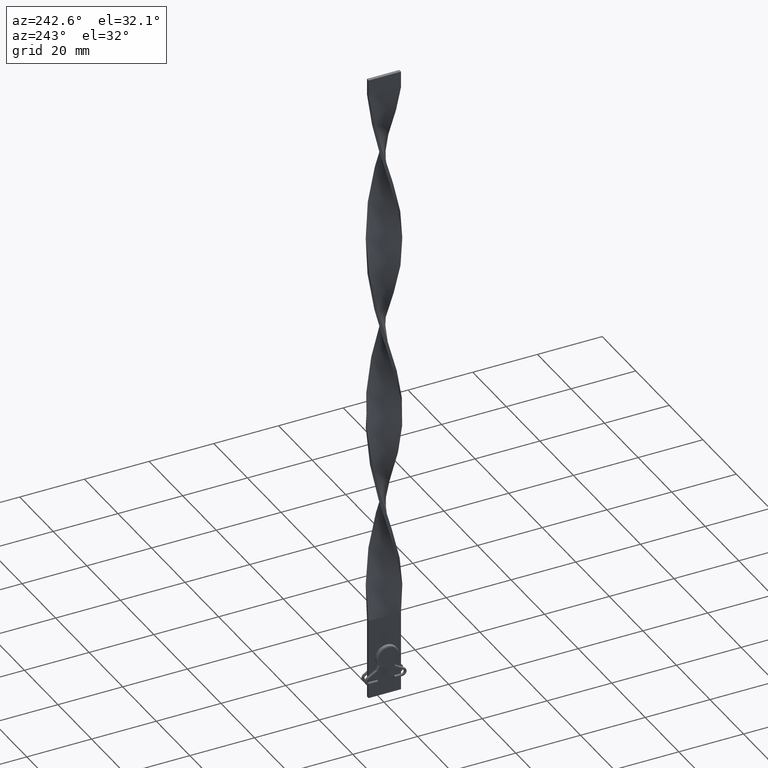
[diagram: clean part render]
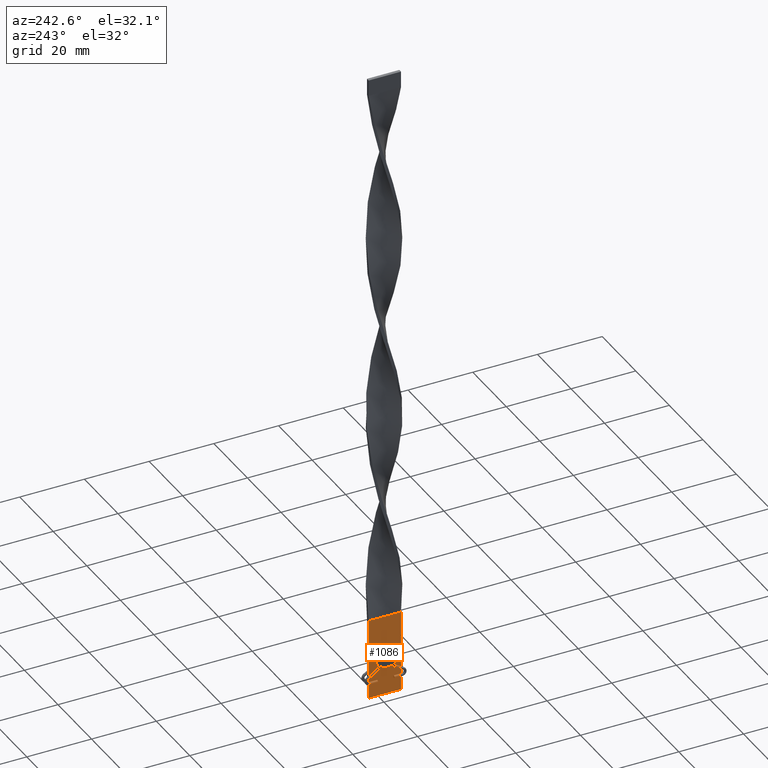
[diagram: same view with one face highlighted and labeled with its STEP entity id]
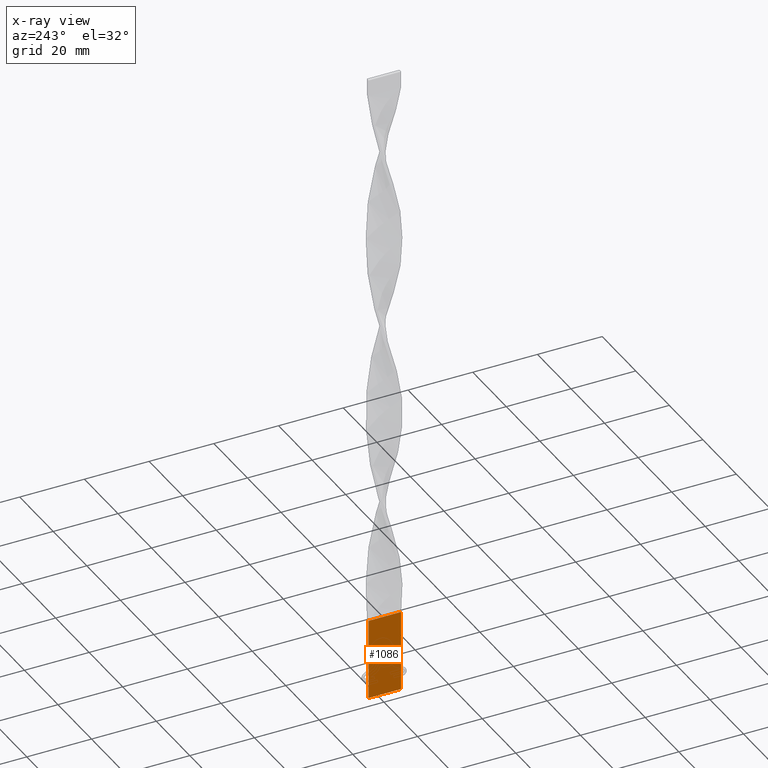
[diagram: x-ray of the same camera — body ghosted, the highlighted face saturated]
A machine part, auxiliary view. The second image highlights one B-rep face of the part: STEP entity #1086.
The next image is the same camera in x-ray: the body ghosted, the highlighted face saturated — about 0% of this face is hidden behind the body in this view.
In plain terms, the highlighted planar face has unit normal (1, 0, -0).
Its self-contained STEP definition (entity closure, byte-faithful):
#114 = EDGE_CURVE ( 'NONE', #2317, #4038, #732, .T. ) ;
#552 = LINE ( 'NONE', #2327, #1269 ) ;
#588 = VERTEX_POINT ( 'NONE', #3949 ) ;
#628 = CARTESIAN_POINT ( 'NONE',  ( -0.5000000000000001110, 4.999999999999995559, 0.000000000000000000 ) ) ;
#664 = VECTOR ( 'NONE', #1434, 1000.000000000000000 ) ;
#678 = CARTESIAN_POINT ( 'NONE',  ( -0.4999999999999990563, -5.000000000000004441, 25.00000000000000000 ) ) ;
#703 = PLANE ( 'NONE',  #892 ) ;
#732 = CIRCLE ( 'NONE', #3332, 1.999999999999999556 ) ;
#892 = AXIS2_PLACEMENT_3D ( 'NONE', #2809, #2457, #1019 ) ;
#962 = CARTESIAN_POINT ( 'NONE',  ( -0.4999999999999995559, 1.999999999999999556, 13.00000000000000000 ) ) ;
#966 = DIRECTION ( 'NONE',  ( 1.000000000000000000, -3.794707603699264533E-16, -0.000000000000000000 ) ) ;
#1019 = DIRECTION ( 'NONE',  ( -1.084202172485504434E-16, 1.000000000000000000, 0.000000000000000000 ) ) ;
#1020 = LINE ( 'NONE', #4264, #1045 ) ;
#1043 = FACE_OUTER_BOUND ( 'NONE', #3934, .T. ) ;
#1045 = VECTOR ( 'NONE', #1069, 1000.000000000000000 ) ;
#1060 = EDGE_CURVE ( 'NONE', #3669, #2860, #1360, .T. ) ;
#1068 = CARTESIAN_POINT ( 'NONE',  ( -0.5000000000000001110, 4.999999999999995559, 25.00000000000000000 ) ) ;
#1069 = DIRECTION ( 'NONE',  ( 1.084202172485504434E-16, -1.000000000000000000, 0.000000000000000000 ) ) ;
#1086 = ADVANCED_FACE ( 'NONE', ( #4214, #1043 ), #703, .F. ) ;
#1087 = EDGE_CURVE ( 'NONE', #588, #2860, #2431, .T. ) ;
#1135 = ORIENTED_EDGE ( 'NONE', *, *, #4279, .T. ) ;
#1252 = VECTOR ( 'NONE', #2083, 1000.000000000000000 ) ;
#1269 = VECTOR ( 'NONE', #3760, 1000.000000000000000 ) ;
#1304 = CARTESIAN_POINT ( 'NONE',  ( -0.5000000000000003331, 6.505213034913030302E-17, 13.00000000000000000 ) ) ;
#1345 = CARTESIAN_POINT ( 'NONE',  ( -0.5000000000000001110, 4.999999999999995559, 0.000000000000000000 ) ) ;
#1360 = LINE ( 'NONE', #1345, #664 ) ;
#1377 = ORIENTED_EDGE ( 'NONE', *, *, #1087, .F. ) ;
#1434 = DIRECTION ( 'NONE',  ( 1.084202172485504434E-16, -1.000000000000000000, 0.000000000000000000 ) ) ;
#1583 = CARTESIAN_POINT ( 'NONE',  ( -0.5000000000000011102, -1.999999999999999556, 13.00000000000000000 ) ) ;
#1636 = ORIENTED_EDGE ( 'NONE', *, *, #1060, .T. ) ;
#1866 = VERTEX_POINT ( 'NONE', #1068 ) ;
#1904 = ORIENTED_EDGE ( 'NONE', *, *, #4483, .F. ) ;
#1984 = DIRECTION ( 'NONE',  ( 3.794707603699266505E-16, 1.000000000000000000, 0.000000000000000000 ) ) ;
#2083 = DIRECTION ( 'NONE',  ( -0.000000000000000000, -0.000000000000000000, -1.000000000000000000 ) ) ;
#2317 = VERTEX_POINT ( 'NONE', #962 ) ;
#2327 = CARTESIAN_POINT ( 'NONE',  ( -0.5000000000000001110, 4.999999999999995559, 25.00000000000000000 ) ) ;
#2431 = LINE ( 'NONE', #678, #1252 ) ;
#2457 = DIRECTION ( 'NONE',  ( 1.000000000000000000, 1.084202172485504434E-16, -0.000000000000000000 ) ) ;
#2785 = EDGE_LOOP ( 'NONE', ( #3323, #4206 ) ) ;
#2809 = CARTESIAN_POINT ( 'NONE',  ( -0.5000000000000001110, 4.999999999999995559, 25.00000000000000000 ) ) ;
#2860 = VERTEX_POINT ( 'NONE', #3233 ) ;
#2901 = CIRCLE ( 'NONE', #4549, 1.999999999999999556 ) ;
#3233 = CARTESIAN_POINT ( 'NONE',  ( -0.4999999999999990563, -5.000000000000004441, 0.000000000000000000 ) ) ;
#3283 = EDGE_CURVE ( 'NONE', #4038, #2317, #2901, .T. ) ;
#3323 = ORIENTED_EDGE ( 'NONE', *, *, #3283, .T. ) ;
#3332 = AXIS2_PLACEMENT_3D ( 'NONE', #4454, #4542, #1984 ) ;
#3669 = VERTEX_POINT ( 'NONE', #628 ) ;
#3760 = DIRECTION ( 'NONE',  ( -0.000000000000000000, -0.000000000000000000, -1.000000000000000000 ) ) ;
#3934 = EDGE_LOOP ( 'NONE', ( #1636, #1377, #1904, #1135 ) ) ;
#3949 = CARTESIAN_POINT ( 'NONE',  ( -0.4999999999999990563, -5.000000000000004441, 25.00000000000000000 ) ) ;
#4038 = VERTEX_POINT ( 'NONE', #1583 ) ;
#4133 = DIRECTION ( 'NONE',  ( 3.794707603699266505E-16, 1.000000000000000000, 0.000000000000000000 ) ) ;
#4206 = ORIENTED_EDGE ( 'NONE', *, *, #114, .T. ) ;
#4214 = FACE_BOUND ( 'NONE', #2785, .T. ) ;
#4264 = CARTESIAN_POINT ( 'NONE',  ( -0.5000000000000001110, 4.999999999999995559, 25.00000000000000000 ) ) ;
#4279 = EDGE_CURVE ( 'NONE', #1866, #3669, #552, .T. ) ;
#4454 = CARTESIAN_POINT ( 'NONE',  ( -0.5000000000000003331, 6.505213034913030302E-17, 13.00000000000000000 ) ) ;
#4483 = EDGE_CURVE ( 'NONE', #1866, #588, #1020, .T. ) ;
#4542 = DIRECTION ( 'NONE',  ( 1.000000000000000000, -3.794707603699264533E-16, -0.000000000000000000 ) ) ;
#4549 = AXIS2_PLACEMENT_3D ( 'NONE', #1304, #966, #4133 ) ;